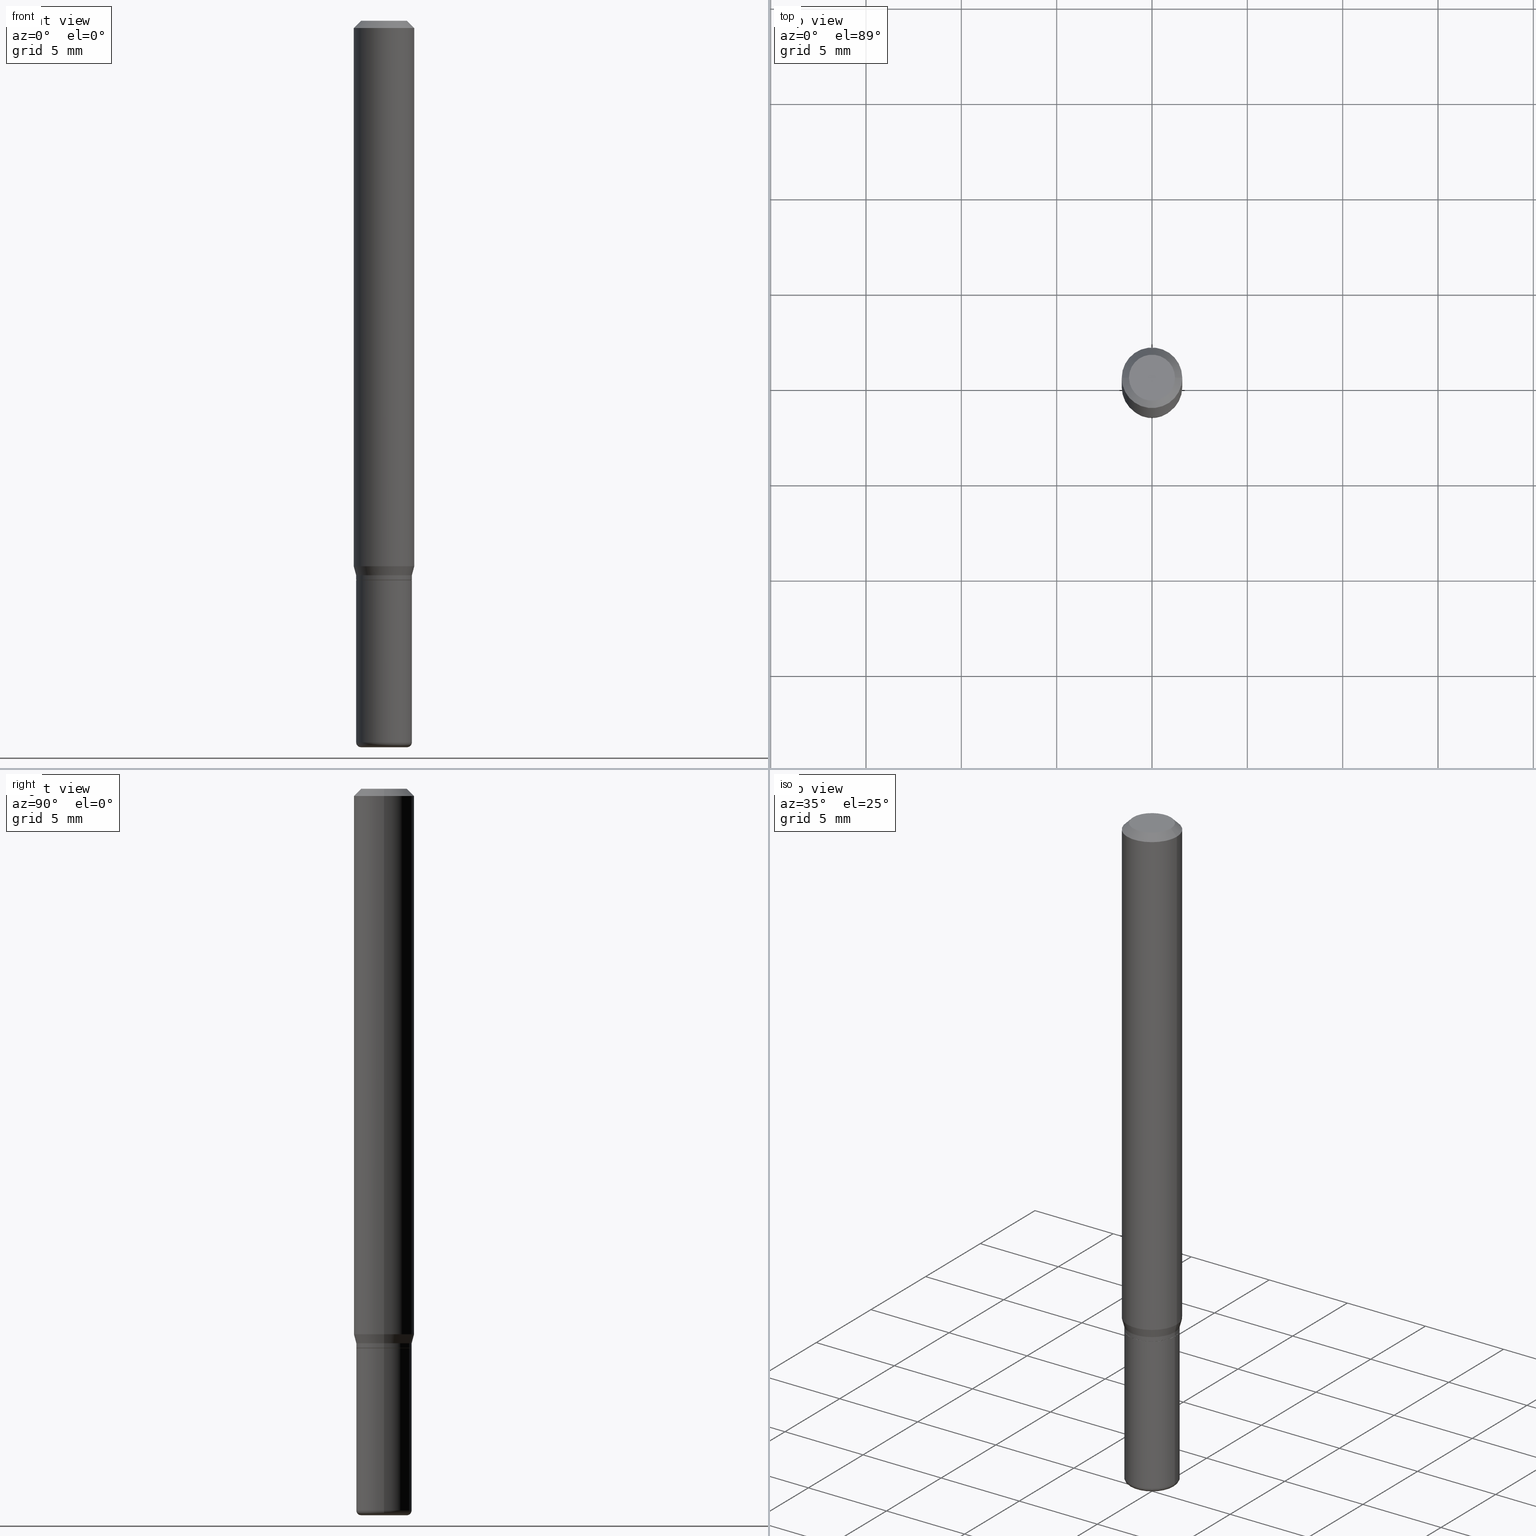
[diagram: canonical four-view strip — front | top / right | iso, engineering-drawing reading convention]
A machine part, canonical four-view strip (front | top / right | iso — engineering-drawing reading convention). The complete STEP part file that produces these views, byte-faithful:
ISO-10303-21;
HEADER;
FILE_DESCRIPTION (( 'STEP AP203' ),
    '1' );
FILE_NAME ('08765.STEP',
    '2024-02-29T20:55:03',
    ( '' ),
    ( '' ),
    'SwSTEP 2.0',
    'SolidWorks 2023',
    '' );
FILE_SCHEMA (( 'CONFIG_CONTROL_DESIGN' ));
ENDSEC;

DATA;
#1 = ADVANCED_FACE ( 'NONE', ( #54 ), #217, .T. ) ;
#2 = CARTESIAN_POINT ( 'NONE',  ( 2.824516471143833307E-29, -4.032660946363833383E-15, -1.155000000000000027 ) ) ;
#3 = CIRCLE ( 'NONE', #510, 0.05749999999999994699 ) ;
#4 = FACE_OUTER_BOUND ( 'NONE', #161, .T. ) ;
#5 = ORIENTED_EDGE ( 'NONE', *, *, #296, .T. ) ;
#6 = PERSON_AND_ORGANIZATION_ROLE ( 'classification_officer' ) ;
#7 = DIRECTION ( 'NONE',  ( 1.000000000000000000, -6.982962677686263555E-15, 0.000000000000000000 ) ) ;
#8 = VERTEX_POINT ( 'NONE', #378 ) ;
#9 = CARTESIAN_POINT ( 'NONE',  ( 0.05750000000000000250, -4.434181300330794192E-15, -1.155000000000000027 ) ) ;
#10 = ORIENTED_EDGE ( 'NONE', *, *, #460, .T. ) ;
#11 = ADVANCED_FACE ( 'NONE', ( #17 ), #418, .T. ) ;
#12 = PERSON_AND_ORGANIZATION ( #444, #34 ) ;
#13 = AXIS2_PLACEMENT_3D ( 'NONE', #152, #168, #206 ) ;
#14 = DIRECTION ( 'NONE',  ( -2.445468806185136597E-29, 3.491481338843145583E-15, 1.000000000000000000 ) ) ;
#15 = APPROVAL_STATUS ( 'not_yet_approved' ) ;
#16 = EDGE_CURVE ( 'NONE', #439, #494, #459, .T. ) ;
#17 = FACE_OUTER_BOUND ( 'NONE', #202, .T. ) ;
#18 = ORIENTED_EDGE ( 'NONE', *, *, #239, .F. ) ;
#19 = AXIS2_PLACEMENT_3D ( 'NONE', #203, #513, #363 ) ;
#20 = LOCAL_TIME ( 15, 55, 2.000000000000000000, #156 ) ;
#21 = EDGE_CURVE ( 'NONE', #113, #169, #197, .T. ) ;
#22 = DIRECTION ( 'NONE',  ( -2.445468806185136877E-29, 3.491481338843145188E-15, 1.000000000000000000 ) ) ;
#23 = DIRECTION ( 'NONE',  ( -2.445468806185136597E-29, 3.491481338843145583E-15, 1.000000000000000000 ) ) ;
#24 = DIRECTION ( 'NONE',  ( -0.7071067811865479058, 2.468850131082261005E-15, -0.7071067811865471286 ) ) ;
#25 = MECHANICAL_CONTEXT ( 'NONE', #313, 'mechanical' ) ;
#26 = CLOSED_SHELL ( 'NONE', ( #1, #349, #331, #101, #70, #143, #337, #172, #308, #262, #422, #159 ) ) ;
#27 = CIRCLE ( 'NONE', #32, 0.05749999999999994699 ) ;
#28 = DIRECTION ( 'NONE',  ( 1.000000000000000000, -6.982962677686266711E-15, 4.852736867747365086E-29 ) ) ;
#29 = APPLICATION_PROTOCOL_DEFINITION ( 'international standard', 'config_control_design', 1994, #313 ) ;
#30 = CYLINDRICAL_SURFACE ( 'NONE', #277, 0.05749999999999996780 ) ;
#31 = CARTESIAN_POINT ( 'NONE',  ( 2.824516471143833307E-29, -4.032660946363833383E-15, -1.155000000000000027 ) ) ;
#32 = AXIS2_PLACEMENT_3D ( 'NONE', #455, #211, #249 ) ;
#33 = FACE_OUTER_BOUND ( 'NONE', #250, .T. ) ;
#34 = ORGANIZATION ( 'UNSPECIFIED', 'UNSPECIFIED', '' ) ;
#35 = EDGE_LOOP ( 'NONE', ( #171, #409, #95, #86 ) ) ;
#36 = APPROVAL ( #15, 'UNSPECIFIED' ) ;
#37 = DIRECTION ( 'NONE',  ( -2.445468806185136877E-29, 3.491481338843145188E-15, 1.000000000000000000 ) ) ;
#38 = LINE ( 'NONE', #434, #214 ) ;
#39 = EDGE_LOOP ( 'NONE', ( #241, #176, #91, #297 ) ) ;
#40 = CC_DESIGN_PERSON_AND_ORGANIZATION_ASSIGNMENT ( #292, #6, ( #228 ) ) ;
#41 = CARTESIAN_POINT ( 'NONE',  ( -0.05699999999999997430, -3.627651586980576706E-15, -1.155000000000000027 ) ) ;
#42 = AXIS2_PLACEMENT_3D ( 'NONE', #278, #448, #81 ) ;
#43 = ORIENTED_EDGE ( 'NONE', *, *, #134, .T. ) ;
#44 = VECTOR ( 'NONE', #276, 39.37007874015748143 ) ;
#45 = DIRECTION ( 'NONE',  ( -0.2588190451025202954, 5.211531920934543942E-15, 0.9659258262890684232 ) ) ;
#46 = CALENDAR_DATE ( 2024, 29, 2 ) ;
#47 = EDGE_CURVE ( 'NONE', #494, #8, #350, .T. ) ;
#48 = CARTESIAN_POINT ( 'NONE',  ( 3.643748521215853910E-29, -5.202307194876288105E-15, -1.490000000000000213 ) ) ;
#49 = ORIENTED_EDGE ( 'NONE', *, *, #343, .T. ) ;
#50 = DATE_TIME_ROLE ( 'creation_date' ) ;
#51 = DIRECTION ( 'NONE',  ( 1.000000000000000000, -6.982962677686268288E-15, 0.000000000000000000 ) ) ;
#52 = ORIENTED_EDGE ( 'NONE', *, *, #357, .T. ) ;
#53 = AXIS2_PLACEMENT_3D ( 'NONE', #475, #441, #478 ) ;
#54 = FACE_OUTER_BOUND ( 'NONE', #327, .T. ) ;
#55 = ORIENTED_EDGE ( 'NONE', *, *, #377, .T. ) ;
#56 = ORIENTED_EDGE ( 'NONE', *, *, #436, .T. ) ;
#57 = AXIS2_PLACEMENT_3D ( 'NONE', #407, #408, #7 ) ;
#58 = PRODUCT_DEFINITION_FORMATION_WITH_SPECIFIED_SOURCE ( 'ANY', '', #493, .NOT_KNOWN. ) ;
#59 = CARTESIAN_POINT ( 'NONE',  ( 0.000000000000000000, 0.000000000000000000, 0.000000000000000000 ) ) ;
#60 = DIRECTION ( 'NONE',  ( 2.438088387897960049E-29, -3.491481338843145188E-15, -1.000000000000000000 ) ) ;
#61 = CARTESIAN_POINT ( 'NONE',  ( -6.680649051745406845E-45, 9.538196290434862081E-31, 2.731847993664263218E-16 ) ) ;
#62 = PRODUCT_RELATED_PRODUCT_CATEGORY ( 'detail', '', ( #493 ) ) ;
#63 = DIRECTION ( 'NONE',  ( 1.000000000000000000, -6.982962677686263555E-15, 0.000000000000000000 ) ) ;
#64 = EDGE_CURVE ( 'NONE', #319, #75, #403, .T. ) ;
#65 = CIRCLE ( 'NONE', #42, 0.06250000000000000000 ) ;
#66 = CARTESIAN_POINT ( 'NONE',  ( 0.05749999999999994699, -5.603827548843247337E-15, -1.490000000000000213 ) ) ;
#67 = LINE ( 'NONE', #346, #191 ) ;
#68 = EDGE_CURVE ( 'NONE', #169, #79, #463, .T. ) ;
#69 = CARTESIAN_POINT ( 'NONE',  ( 0.06250000000000000000, -4.888073874380378612E-16, -0.01499999999999970281 ) ) ;
#70 = ADVANCED_FACE ( 'NONE', ( #259 ), #146, .T. ) ;
#71 = CARTESIAN_POINT ( 'NONE',  ( 2.824516471143833307E-29, -4.032660946363833383E-15, -1.155000000000000027 ) ) ;
#72 = AXIS2_PLACEMENT_3D ( 'NONE', #213, #14, #293 ) ;
#73 = AXIS2_PLACEMENT_3D ( 'NONE', #131, #87, #367 ) ;
#74 = DIRECTION ( 'NONE',  ( -2.438088387897960049E-29, 3.491481338843145188E-15, 1.000000000000000000 ) ) ;
#75 = VERTEX_POINT ( 'NONE', #501 ) ;
#76 = CARTESIAN_POINT ( 'NONE',  ( 2.824516471143833307E-29, -4.032660946363833383E-15, -1.155000000000000027 ) ) ;
#77 = ORIENTED_EDGE ( 'NONE', *, *, #436, .F. ) ;
#78 = CARTESIAN_POINT ( 'NONE',  ( -0.04750000000000000749, 3.578768372314221353E-16, 2.731847993664239060E-16 ) ) ;
#79 = VERTEX_POINT ( 'NONE', #66 ) ;
#80 = AXIS2_PLACEMENT_3D ( 'NONE', #499, #23, #189 ) ;
#81 = DIRECTION ( 'NONE',  ( 1.000000000000000000, -6.982962677686266711E-15, 0.000000000000000000 ) ) ;
#82 = AXIS2_PLACEMENT_3D ( 'NONE', #85, #245, #51 ) ;
#83 = APPROVAL_STATUS ( 'not_yet_approved' ) ;
#84 = EDGE_CURVE ( 'NONE', #518, #287, #339, .T. ) ;
#85 = CARTESIAN_POINT ( 'NONE',  ( 2.824516471143833307E-29, -4.032660946363833383E-15, -1.155000000000000027 ) ) ;
#86 = ORIENTED_EDGE ( 'NONE', *, *, #512, .F. ) ;
#87 = DIRECTION ( 'NONE',  ( -2.445468806185136597E-29, 3.491481338843145583E-15, 1.000000000000000000 ) ) ;
#88 = VERTEX_POINT ( 'NONE', #69 ) ;
#89 = CALENDAR_DATE ( 2024, 29, 2 ) ;
#90 = EDGE_CURVE ( 'NONE', #75, #321, #303, .T. ) ;
#91 = ORIENTED_EDGE ( 'NONE', *, *, #417, .F. ) ;
#92 = VECTOR ( 'NONE', #231, 39.37007874015748143 ) ;
#93 = CONICAL_SURFACE ( 'NONE', #82, 0.05699999999999997430, 0.7853981633975507526 ) ;
#94 = CC_DESIGN_APPROVAL ( #36, ( #228 ) ) ;
#95 = ORIENTED_EDGE ( 'NONE', *, *, #377, .F. ) ;
#96 = ORIENTED_EDGE ( 'NONE', *, *, #84, .F. ) ;
#97 = ADVANCED_FACE ( 'NONE', ( #102 ), #263, .F. ) ;
#98 = DIRECTION ( 'NONE',  ( 7.105427357601001859E-15, 1.000000000000000000, -3.491481338843145583E-15 ) ) ;
#99 = CARTESIAN_POINT ( 'NONE',  ( -0.05750000000000000250, -4.208921997558003169E-15, -1.155000000000000027 ) ) ;
#100 = AXIS2_PLACEMENT_3D ( 'NONE', #76, #74, #235 ) ;
#101 = ADVANCED_FACE ( 'NONE', ( #271 ), #225, .T. ) ;
#102 = FACE_OUTER_BOUND ( 'NONE', #128, .T. ) ;
#103 = DIRECTION ( 'NONE',  ( 0.7071067811865479058, -7.319954787623257623E-15, -0.7071067811865471286 ) ) ;
#104 = EDGE_CURVE ( 'NONE', #79, #416, #106, .T. ) ;
#105 = DIRECTION ( 'NONE',  ( 1.000000000000000000, -6.982962677686273810E-15, 0.000000000000000000 ) ) ;
#106 = LINE ( 'NONE', #110, #481 ) ;
#107 = ADVANCED_FACE ( 'NONE', ( #306 ), #420, .T. ) ;
#108 = APPROVAL_ROLE ( '' ) ;
#109 = LOCAL_TIME ( 15, 55, 2.000000000000000000, #126 ) ;
#110 = CARTESIAN_POINT ( 'NONE',  ( 0.05749999999999997474, -4.015203539669602175E-16, 2.803801646082662240E-30 ) ) ;
#111 = DATE_AND_TIME ( #312, #207 ) ;
#112 = PLANE ( 'NONE',  #100 ) ;
#113 = VERTEX_POINT ( 'NONE', #391 ) ;
#114 = APPROVAL ( #310, 'UNSPECIFIED' ) ;
#115 = DIRECTION ( 'NONE',  ( -2.445468806185136597E-29, 3.491481338843145583E-15, 1.000000000000000000 ) ) ;
#116 = ORIENTED_EDGE ( 'NONE', *, *, #258, .T. ) ;
#117 = AXIS2_PLACEMENT_3D ( 'NONE', #326, #483, #279 ) ;
#118 = DIRECTION ( 'NONE',  ( -2.445468806185136597E-29, 3.491481338843145583E-15, 1.000000000000000000 ) ) ;
#119 = VERTEX_POINT ( 'NONE', #347 ) ;
#120 = CARTESIAN_POINT ( 'NONE',  ( -0.05749999999999997474, 4.085620730620574274E-16, -2.828387676896569661E-30 ) ) ;
#121 = EDGE_CURVE ( 'NONE', #416, #485, #252, .T. ) ;
#122 = ORIENTED_EDGE ( 'NONE', *, *, #134, .F. ) ;
#123 = CALENDAR_DATE ( 2024, 29, 2 ) ;
#124 = LINE ( 'NONE', #120, #295 ) ;
#125 = ORIENTED_EDGE ( 'NONE', *, *, #21, .F. ) ;
#126 = COORDINATED_UNIVERSAL_TIME_OFFSET ( 5, 0, .BEHIND. ) ;
#127 = FACE_OUTER_BOUND ( 'NONE', #35, .T. ) ;
#128 = EDGE_LOOP ( 'NONE', ( #491, #116 ) ) ;
#129 = DATE_AND_TIME ( #288, #109 ) ;
#130 = CC_DESIGN_PERSON_AND_ORGANIZATION_ASSIGNMENT ( #12, #180, ( #58 ) ) ;
#131 = CARTESIAN_POINT ( 'NONE',  ( 0.000000000000000000, 0.000000000000000000, 0.000000000000000000 ) ) ;
#132 = ORIENTED_EDGE ( 'NONE', *, *, #289, .T. ) ;
#133 = DATE_AND_TIME ( #46, #20 ) ;
#134 = EDGE_CURVE ( 'NONE', #287, #321, #187, .T. ) ;
#135 = ORIENTED_EDGE ( 'NONE', *, *, #90, .F. ) ;
#136 = COORDINATED_UNIVERSAL_TIME_OFFSET ( 5, 0, .BEHIND. ) ;
#137 = ORIENTED_EDGE ( 'NONE', *, *, #343, .F. ) ;
#138 = AXIS2_PLACEMENT_3D ( 'NONE', #386, #388, #105 ) ;
#139 = CONICAL_SURFACE ( 'NONE', #19, 0.06250000000000000000, 0.7853981633974488341 ) ;
#140 = VERTEX_POINT ( 'NONE', #506 ) ;
#141 = DIRECTION ( 'NONE',  ( 0.7071067811866199593, -2.468850131083015945E-15, 0.7071067811864750752 ) ) ;
#142 = DIRECTION ( 'NONE',  ( 1.000000000000000000, -6.982962677686266711E-15, 4.852736867747365086E-29 ) ) ;
#143 = ADVANCED_FACE ( 'NONE', ( #467 ), #348, .T. ) ;
#144 = DIRECTION ( 'NONE',  ( -1.000000000000000000, 7.105427357600964782E-15, 0.000000000000000000 ) ) ;
#145 = CARTESIAN_POINT ( 'NONE',  ( 0.05749999999999997474, -4.432435559661372688E-15, -1.154500000000000304 ) ) ;
#146 = CONICAL_SURFACE ( 'NONE', #80, 0.05749999999999994699, 0.2617993877991489637 ) ;
#147 = AXIS2_PLACEMENT_3D ( 'NONE', #48, #333, #486 ) ;
#148 = CARTESIAN_POINT ( 'NONE',  ( -0.06250000000000000000, 4.440892098500626162E-16, -3.074334431409316114E-30 ) ) ;
#149 = CARTESIAN_POINT ( 'NONE',  ( 0.06250000000000000000, -4.364351673553916694E-16, 3.047610484872459871E-30 ) ) ;
#150 = DIRECTION ( 'NONE',  ( -2.445468806185136877E-29, 3.491481338843145188E-15, 1.000000000000000000 ) ) ;
#151 = APPLICATION_PROTOCOL_DEFINITION ( 'international standard', 'config_control_design', 1994, #515 ) ;
#152 = CARTESIAN_POINT ( 'NONE',  ( 3.668203209277704895E-29, -5.237222008264718177E-15, -1.500000000000000222 ) ) ;
#153 = LENGTH_MEASURE_WITH_UNIT ( LENGTH_MEASURE( 0.02539999999999999897 ), #305 );
#154 = CONICAL_SURFACE ( 'NONE', #219, 0.05699999999999997430, 0.7853981633975507526 ) ;
#155 = DIRECTION ( 'NONE',  ( -2.445468806185136597E-29, 3.491481338843145583E-15, 1.000000000000000000 ) ) ;
#156 = COORDINATED_UNIVERSAL_TIME_OFFSET ( 5, 0, .BEHIND. ) ;
#157 = DIRECTION ( 'NONE',  ( -1.000000000000000000, 6.982962677686265922E-15, -4.876176775795935793E-29 ) ) ;
#158 = ORIENTED_EDGE ( 'NONE', *, *, #451, .F. ) ;
#159 = ADVANCED_FACE ( 'NONE', ( #469 ), #30, .T. ) ;
#160 = FACE_OUTER_BOUND ( 'NONE', #215, .T. ) ;
#161 = EDGE_LOOP ( 'NONE', ( #135, #280, #299, #137 ) ) ;
#162 = VECTOR ( 'NONE', #22, 39.37007874015748143 ) ;
#163 = EDGE_CURVE ( 'NONE', #113, #119, #243, .T. ) ;
#164 = AXIS2_PLACEMENT_3D ( 'NONE', #246, #374, #186 ) ;
#165 = DIRECTION ( 'NONE',  ( 1.000000000000000000, -6.982962677686268288E-15, 0.000000000000000000 ) ) ;
#166 = AXIS2_PLACEMENT_3D ( 'NONE', #220, #424, #195 ) ;
#167 = ORIENTED_EDGE ( 'NONE', *, *, #223, .F. ) ;
#168 = DIRECTION ( 'NONE',  ( -2.445468806185136597E-29, 3.491481338843145583E-15, 1.000000000000000000 ) ) ;
#169 = VERTEX_POINT ( 'NONE', #355 ) ;
#170 = LINE ( 'NONE', #489, #340 ) ;
#171 = ORIENTED_EDGE ( 'NONE', *, *, #451, .T. ) ;
#172 = ADVANCED_FACE ( 'NONE', ( #160 ), #183, .T. ) ;
#173 = AXIS2_PLACEMENT_3D ( 'NONE', #221, #98, #144 ) ;
#174 = CYLINDRICAL_SURFACE ( 'NONE', #73, 0.05749999999999997474 ) ;
#175 = CIRCLE ( 'NONE', #227, 0.04750000000000000749 ) ;
#176 = ORIENTED_EDGE ( 'NONE', *, *, #205, .T. ) ;
#177 = LOCAL_TIME ( 15, 55, 2.000000000000000000, #281 ) ;
#178 = SECURITY_CLASSIFICATION_LEVEL ( 'unclassified' ) ;
#179 = EDGE_LOOP ( 'NONE', ( #514, #375, #247, #291 ) ) ;
#180 = PERSON_AND_ORGANIZATION_ROLE ( 'design_supplier' ) ;
#181 = VECTOR ( 'NONE', #141, 39.37007874015748143 ) ;
#182 = DIRECTION ( 'NONE',  ( -2.445468806185136597E-29, 3.491481338843145583E-15, 1.000000000000000000 ) ) ;
#183 = CONICAL_SURFACE ( 'NONE', #53, 0.06250000000000000000, 0.7853981633974488341 ) ;
#184 = PRODUCT_DEFINITION_SHAPE ( 'NONE', 'NONE',  #212 ) ;
#185 = CARTESIAN_POINT ( 'NONE',  ( 0.000000000000000000, 0.000000000000000000, 0.000000000000000000 ) ) ;
#186 = DIRECTION ( 'NONE',  ( 1.000000000000000000, -6.982962677686259611E-15, 0.000000000000000000 ) ) ;
#187 = LINE ( 'NONE', #345, #380 ) ;
#188 = CARTESIAN_POINT ( 'NONE',  ( 0.05699999999999997430, -4.430689818991950396E-15, -1.155000000000000027 ) ) ;
#189 = DIRECTION ( 'NONE',  ( 1.000000000000000000, -6.982962677686272233E-15, 0.000000000000000000 ) ) ;
#190 = AXIS2_PLACEMENT_3D ( 'NONE', #429, #300, #63 ) ;
#191 = VECTOR ( 'NONE', #103, 39.37007874015748143 ) ;
#192 = DIRECTION ( 'NONE',  ( -1.000000000000000000, 6.982962677686265922E-15, -4.876176775795935793E-29 ) ) ;
#193 = DIRECTION ( 'NONE',  ( -2.445468806185136597E-29, 3.491481338843145583E-15, 1.000000000000000000 ) ) ;
#194 = DIRECTION ( 'NONE',  ( -2.445468806185136597E-29, 3.491481338843145583E-15, 1.000000000000000000 ) ) ;
#195 = DIRECTION ( 'NONE',  ( 1.000000000000000000, 0.000000000000000000, 0.000000000000000000 ) ) ;
#196 = DIRECTION ( 'NONE',  ( -2.438088387897960049E-29, 3.491481338843145188E-15, 1.000000000000000000 ) ) ;
#197 = CIRCLE ( 'NONE', #173, 0.009999999999999944697 ) ;
#198 = AXIS2_PLACEMENT_3D ( 'NONE', #2, #115, #437 ) ;
#199 = DIRECTION ( 'NONE',  ( 0.2588190451025202954, 1.565188264969630251E-15, 0.9659258262890684232 ) ) ;
#200 = EDGE_LOOP ( 'NONE', ( #55, #315, #341, #446 ) ) ;
#201 = FACE_OUTER_BOUND ( 'NONE', #253, .T. ) ;
#202 = EDGE_LOOP ( 'NONE', ( #125, #218, #383, #368 ) ) ;
#203 = CARTESIAN_POINT ( 'NONE',  ( 3.668203209277632395E-31, -5.237222008264614861E-17, -0.01499999999999970281 ) ) ;
#204 = ORIENTED_EDGE ( 'NONE', *, *, #68, .T. ) ;
#205 = EDGE_CURVE ( 'NONE', #456, #140, #354, .T. ) ;
#206 = DIRECTION ( 'NONE',  ( 1.000000000000000000, -6.982962677686260400E-15, 0.000000000000000000 ) ) ;
#207 = LOCAL_TIME ( 15, 55, 2.000000000000000000, #353 ) ;
#208 = EDGE_LOOP ( 'NONE', ( #18, #167 ) ) ;
#209 = DIRECTION ( 'NONE',  ( 1.000000000000000000, -6.982962677686259611E-15, 0.000000000000000000 ) ) ;
#210 = APPROVAL_ROLE ( '' ) ;
#211 = DIRECTION ( 'NONE',  ( -2.445468806185136597E-29, 3.491481338843145583E-15, 1.000000000000000000 ) ) ;
#212 = PRODUCT_DEFINITION ( 'UNKNOWN', '', #58, #283 ) ;
#213 = CARTESIAN_POINT ( 'NONE',  ( 0.000000000000000000, 0.000000000000000000, 0.000000000000000000 ) ) ;
#214 = VECTOR ( 'NONE', #199, 39.37007874015748143 ) ;
#215 = EDGE_LOOP ( 'NONE', ( #77, #284, #43, #49 ) ) ;
#216 = ORIENTED_EDGE ( 'NONE', *, *, #442, .F. ) ;
#217 = CYLINDRICAL_SURFACE ( 'NONE', #72, 0.05749999999999996780 ) ;
#218 = ORIENTED_EDGE ( 'NONE', *, *, #163, .T. ) ;
#219 = AXIS2_PLACEMENT_3D ( 'NONE', #31, #511, #329 ) ;
#220 = CARTESIAN_POINT ( 'NONE',  ( 0.000000000000000000, 0.000000000000000000, 0.000000000000000000 ) ) ;
#221 = CARTESIAN_POINT ( 'NONE',  ( -0.04750000000000000749, -4.864799395390240612E-15, -1.490000000000000213 ) ) ;
#222 = DIRECTION ( 'NONE',  ( 1.000000000000000000, -6.982962677686267499E-15, 4.876176775795936353E-29 ) ) ;
#223 = EDGE_CURVE ( 'NONE', #456, #439, #471, .T. ) ;
#224 = CARTESIAN_POINT ( 'NONE',  ( -0.05699999999999997430, -3.625002359806465505E-15, -1.155000000000000027 ) ) ;
#225 = CYLINDRICAL_SURFACE ( 'NONE', #242, 0.06250000000000000000 ) ;
#226 = AXIS2_PLACEMENT_3D ( 'NONE', #59, #389, #222 ) ;
#227 = AXIS2_PLACEMENT_3D ( 'NONE', #61, #193, #142 ) ;
#228 = SECURITY_CLASSIFICATION ( '', '', #178 ) ;
#229 = DIRECTION ( 'NONE',  ( 1.000000000000000000, -6.982962677686266711E-15, 4.876176775795935793E-29 ) ) ;
#230 = DIRECTION ( 'NONE',  ( -2.445468806185136597E-29, 3.491481338843145583E-15, 1.000000000000000000 ) ) ;
#231 = DIRECTION ( 'NONE',  ( -2.445468806185136877E-29, 3.491481338843145188E-15, 1.000000000000000000 ) ) ;
#232 = CARTESIAN_POINT ( 'NONE',  ( 2.824516471143833307E-29, -4.032660946363833383E-15, -1.155000000000000027 ) ) ;
#233 = ORIENTED_EDGE ( 'NONE', *, *, #385, .F. ) ;
#234 = AXIS2_PLACEMENT_3D ( 'NONE', #392, #268, #431 ) ;
#235 = DIRECTION ( 'NONE',  ( 1.000000000000000000, -6.982962677686265922E-15, 4.876176775795935793E-29 ) ) ;
#236 = EDGE_CURVE ( 'NONE', #169, #485, #124, .T. ) ;
#237 = FACE_OUTER_BOUND ( 'NONE', #238, .T. ) ;
#238 = EDGE_LOOP ( 'NONE', ( #10, #324 ) ) ;
#239 = EDGE_CURVE ( 'NONE', #439, #456, #322, .T. ) ;
#240 = DIRECTION ( 'NONE',  ( -2.445468806185136877E-29, 3.491481338843145188E-15, 1.000000000000000000 ) ) ;
#241 = ORIENTED_EDGE ( 'NONE', *, *, #239, .T. ) ;
#242 = AXIS2_PLACEMENT_3D ( 'NONE', #185, #342, #229 ) ;
#243 = CIRCLE ( 'NONE', #13, 0.04750000000000000749 ) ;
#244 = APPROVAL_PERSON_ORGANIZATION ( #376, #36, #325 ) ;
#245 = DIRECTION ( 'NONE',  ( -2.445468806185136597E-29, 3.491481338843145583E-15, 1.000000000000000000 ) ) ;
#246 = CARTESIAN_POINT ( 'NONE',  ( 2.823293736740741066E-29, -4.030915205694411879E-15, -1.154500000000000304 ) ) ;
#247 = ORIENTED_EDGE ( 'NONE', *, *, #47, .T. ) ;
#248 = EDGE_CURVE ( 'NONE', #88, #321, #450, .T. ) ;
#249 = DIRECTION ( 'NONE',  ( 1.000000000000000000, -6.982962677686272233E-15, 0.000000000000000000 ) ) ;
#250 = EDGE_LOOP ( 'NONE', ( #96, #56, #356, #122 ) ) ;
#251 = DATE_TIME_ROLE ( 'classification_date' ) ;
#252 = CIRCLE ( 'NONE', #138, 0.05750000000000000250 ) ;
#253 = EDGE_LOOP ( 'NONE', ( #158, #395 ) ) ;
#254 = APPROVAL_DATE_TIME ( #414, #36 ) ;
#255 = ORIENTED_EDGE ( 'NONE', *, *, #236, .F. ) ;
#256 = CC_DESIGN_DATE_AND_TIME_ASSIGNMENT ( #133, #50, ( #212 ) ) ;
#257 = ORIENTED_EDGE ( 'NONE', *, *, #464, .F. ) ;
#258 = EDGE_CURVE ( 'NONE', #485, #416, #270, .T. ) ;
#259 = FACE_OUTER_BOUND ( 'NONE', #400, .T. ) ;
#260 = AXIS2_PLACEMENT_3D ( 'NONE', #232, #155, #484 ) ;
#261 = CARTESIAN_POINT ( 'NONE',  ( 0.04750000000000000749, -5.533997922066385616E-15, -1.490000000000000213 ) ) ;
#262 = ADVANCED_FACE ( 'NONE', ( #314 ), #112, .F. ) ;
#263 = PLANE ( 'NONE',  #438 ) ;
#264 = PERSON_AND_ORGANIZATION_ROLE ( 'creator' ) ;
#265 = CARTESIAN_POINT ( 'NONE',  ( 2.800061783081981762E-29, -3.997746132975402522E-15, -1.145000000000000240 ) ) ;
#266 = CARTESIAN_POINT ( 'NONE',  ( 0.000000000000000000, 0.000000000000000000, 0.000000000000000000 ) ) ;
#267 = AXIS2_PLACEMENT_3D ( 'NONE', #379, #182, #498 ) ;
#268 = DIRECTION ( 'NONE',  ( -2.445468806185136597E-29, 3.491481338843145583E-15, 1.000000000000000000 ) ) ;
#269 = TOROIDAL_SURFACE ( 'NONE', #147, 0.04750000000000000749, 0.009999999999999944697 ) ;
#270 = CIRCLE ( 'NONE', #260, 0.05750000000000000250 ) ;
#271 = FACE_OUTER_BOUND ( 'NONE', #359, .T. ) ;
#272 = APPROVAL_DATE_TIME ( #111, #114 ) ;
#273 = CARTESIAN_POINT ( 'NONE',  ( 3.582686580359766038E-29, -5.359686688179453325E-15, -1.500000000000000222 ) ) ;
#274 = EDGE_LOOP ( 'NONE', ( #334, #413, #338, #415 ) ) ;
#275 = ADVANCED_FACE ( 'NONE', ( #201 ), #397, .F. ) ;
#276 = DIRECTION ( 'NONE',  ( -0.7071067811866199593, 7.493145998870616062E-15, 0.7071067811864750752 ) ) ;
#277 = AXIS2_PLACEMENT_3D ( 'NONE', #266, #508, #352 ) ;
#278 = CARTESIAN_POINT ( 'NONE',  ( 3.668203209277632395E-31, -5.237222008264614861E-17, -0.01499999999999970281 ) ) ;
#279 = DIRECTION ( 'NONE',  ( 1.000000000000000000, -6.982962677686266711E-15, 0.000000000000000000 ) ) ;
#280 = ORIENTED_EDGE ( 'NONE', *, *, #464, .T. ) ;
#281 = COORDINATED_UNIVERSAL_TIME_OFFSET ( 5, 0, .BEHIND. ) ;
#282 = DIRECTION ( 'NONE',  ( 1.000000000000000000, -6.982962677686266711E-15, 4.876176775795935793E-29 ) ) ;
#283 = DESIGN_CONTEXT ( 'detailed design', #515, 'design' ) ;
#284 = ORIENTED_EDGE ( 'NONE', *, *, #460, .F. ) ;
#285 = CIRCLE ( 'NONE', #503, 0.009999999999999944697 ) ;
#286 = CARTESIAN_POINT ( 'NONE',  ( -0.05749999999999994699, -3.538844527143738686E-15, -1.145000000000000240 ) ) ;
#287 = VERTEX_POINT ( 'NONE', #78 ) ;
#288 = CALENDAR_DATE ( 2024, 29, 2 ) ;
#289 = EDGE_CURVE ( 'NONE', #8, #319, #38, .T. ) ;
#290 = DIRECTION ( 'NONE',  ( -2.445468806185136597E-29, 3.491481338843145583E-15, 1.000000000000000000 ) ) ;
#291 = ORIENTED_EDGE ( 'NONE', *, *, #357, .F. ) ;
#292 = PERSON_AND_ORGANIZATION ( #444, #34 ) ;
#293 = DIRECTION ( 'NONE',  ( 1.000000000000000000, -6.982962677686266711E-15, 4.876176775795935793E-29 ) ) ;
#294 = SHAPE_DEFINITION_REPRESENTATION ( #184, #360 ) ;
#295 = VECTOR ( 'NONE', #37, 39.37007874015748143 ) ;
#296 = EDGE_CURVE ( 'NONE', #140, #411, #394, .T. ) ;
#297 = ORIENTED_EDGE ( 'NONE', *, *, #16, .F. ) ;
#298 = CC_DESIGN_SECURITY_CLASSIFICATION ( #228, ( #58 ) ) ;
#299 = ORIENTED_EDGE ( 'NONE', *, *, #442, .T. ) ;
#300 = DIRECTION ( 'NONE',  ( -2.445468806185136597E-29, 3.491481338843145583E-15, 1.000000000000000000 ) ) ;
#301 = CARTESIAN_POINT ( 'NONE',  ( 3.668203209277704895E-29, -5.237222008264718177E-15, -1.500000000000000222 ) ) ;
#302 = CC_DESIGN_PERSON_AND_ORGANIZATION_ASSIGNMENT ( #351, #433, ( #493 ) ) ;
#303 = LINE ( 'NONE', #148, #92 ) ;
#304 = CIRCLE ( 'NONE', #57, 0.05749999999999994699 ) ;
#305 =( LENGTH_UNIT ( ) NAMED_UNIT ( * ) SI_UNIT ( $, .METRE. ) );
#306 = FACE_OUTER_BOUND ( 'NONE', #476, .T. ) ;
#307 = LINE ( 'NONE', #149, #482 ) ;
#308 = ADVANCED_FACE ( 'NONE', ( #237 ), #361, .F. ) ;
#309 = DIRECTION ( 'NONE',  ( 1.000000000000000000, -6.982962677686272233E-15, 0.000000000000000000 ) ) ;
#310 = APPROVAL_STATUS ( 'not_yet_approved' ) ;
#311 = CARTESIAN_POINT ( 'NONE',  ( 2.754428713916942619E-29, -3.932594204224195830E-15, -1.126339745962155581 ) ) ;
#312 = CALENDAR_DATE ( 2024, 29, 2 ) ;
#313 = APPLICATION_CONTEXT ( 'configuration controlled 3d designs of mechanical parts and assemblies' ) ;
#314 = FACE_OUTER_BOUND ( 'NONE', #208, .T. ) ;
#315 = ORIENTED_EDGE ( 'NONE', *, *, #236, .T. ) ;
#316 = CC_DESIGN_PERSON_AND_ORGANIZATION_ASSIGNMENT ( #369, #492, ( #58 ) ) ;
#317 = CYLINDRICAL_SURFACE ( 'NONE', #373, 0.06250000000000000000 ) ;
#318 = UNCERTAINTY_MEASURE_WITH_UNIT (LENGTH_MEASURE( 1.000000000000000082E-05 ), #427, 'distance_accuracy_value', 'NONE');
#319 = VERTEX_POINT ( 'NONE', #323 ) ;
#320 = DIRECTION ( 'NONE',  ( 1.000000000000000000, -6.982962677686265922E-15, 4.876176775795935793E-29 ) ) ;
#321 = VERTEX_POINT ( 'NONE', #401 ) ;
#322 = CIRCLE ( 'NONE', #404, 0.05699999999999997430 ) ;
#323 = CARTESIAN_POINT ( 'NONE',  ( 0.06250000000000000000, -4.369029371579586711E-15, -1.126339745962155581 ) ) ;
#324 = ORIENTED_EDGE ( 'NONE', *, *, #84, .T. ) ;
#325 = APPROVAL_ROLE ( '' ) ;
#326 = CARTESIAN_POINT ( 'NONE',  ( 3.668203209277632395E-31, -5.237222008264614861E-17, -0.01499999999999970281 ) ) ;
#327 = EDGE_LOOP ( 'NONE', ( #435, #5, #461, #336 ) ) ;
#328 = DATE_AND_TIME ( #89, #177 ) ;
#329 = DIRECTION ( 'NONE',  ( 1.000000000000000000, -6.982962677686268288E-15, 0.000000000000000000 ) ) ;
#330 = ORIENTED_EDGE ( 'NONE', *, *, #248, .F. ) ;
#331 = ADVANCED_FACE ( 'NONE', ( #33 ), #139, .T. ) ;
#332 = VECTOR ( 'NONE', #240, 39.37007874015748143 ) ;
#333 = DIRECTION ( 'NONE',  ( -2.445468806185136597E-29, 3.491481338843145583E-15, 1.000000000000000000 ) ) ;
#334 = ORIENTED_EDGE ( 'NONE', *, *, #205, .F. ) ;
#335 = MANIFOLD_SOLID_BREP ( 'Body-Move/Copy2[1]', #428 ) ;
#336 = ORIENTED_EDGE ( 'NONE', *, *, #47, .F. ) ;
#337 = ADVANCED_FACE ( 'NONE', ( #4 ), #317, .T. ) ;
#338 = ORIENTED_EDGE ( 'NONE', *, *, #16, .T. ) ;
#339 = CIRCLE ( 'NONE', #372, 0.04750000000000000749 ) ;
#340 = VECTOR ( 'NONE', #45, 39.37007874015748143 ) ;
#341 = ORIENTED_EDGE ( 'NONE', *, *, #121, .F. ) ;
#342 = DIRECTION ( 'NONE',  ( -2.445468806185136597E-29, 3.491481338843145583E-15, 1.000000000000000000 ) ) ;
#343 = EDGE_CURVE ( 'NONE', #321, #88, #65, .T. ) ;
#344 = DIRECTION ( 'NONE',  ( 1.000000000000000000, -6.982962677686274599E-15, 0.000000000000000000 ) ) ;
#345 = CARTESIAN_POINT ( 'NONE',  ( -0.06250000000000000000, 3.840629472727455270E-16, -0.01499999999999970281 ) ) ;
#346 = CARTESIAN_POINT ( 'NONE',  ( 0.06250000000000000000, -4.811533449433669144E-16, -0.01499999999999970281 ) ) ;
#347 = CARTESIAN_POINT ( 'NONE',  ( 0.04750000000000000749, -5.568912735454815688E-15, -1.500000000000000222 ) ) ;
#348 = CONICAL_SURFACE ( 'NONE', #496, 0.05749999999999994699, 0.2617993877991489637 ) ;
#349 = ADVANCED_FACE ( 'NONE', ( #393 ), #154, .T. ) ;
#350 = LINE ( 'NONE', #432, #162 ) ;
#351 = PERSON_AND_ORGANIZATION ( #444, #34 ) ;
#352 = DIRECTION ( 'NONE',  ( 1.000000000000000000, -6.982962677686266711E-15, 4.876176775795935793E-29 ) ) ;
#353 = COORDINATED_UNIVERSAL_TIME_OFFSET ( 5, 0, .BEHIND. ) ;
#354 = LINE ( 'NONE', #41, #44 ) ;
#355 = CARTESIAN_POINT ( 'NONE',  ( -0.05749999999999994699, -4.208921997558003169E-15, -1.490000000000000213 ) ) ;
#356 = ORIENTED_EDGE ( 'NONE', *, *, #248, .T. ) ;
#357 = EDGE_CURVE ( 'NONE', #411, #8, #27, .T. ) ;
#358 = CARTESIAN_POINT ( 'NONE',  ( -0.05749999999999996780, 4.085620730620573781E-16, -2.828387676896568961E-30 ) ) ;
#359 = EDGE_LOOP ( 'NONE', ( #487, #490, #330, #216 ) ) ;
#360 = ADVANCED_BREP_SHAPE_REPRESENTATION ( '08765', ( #335, #516, #166 ), #473 ) ;
#361 = PLANE ( 'NONE',  #412 ) ;
#362 = CIRCLE ( 'NONE', #465, 0.05749999999999997474 ) ;
#363 = DIRECTION ( 'NONE',  ( -1.000000000000000000, 6.982962677686266711E-15, 0.000000000000000000 ) ) ;
#364 = ORIENTED_EDGE ( 'NONE', *, *, #289, .F. ) ;
#365 = FACE_OUTER_BOUND ( 'NONE', #200, .T. ) ;
#366 = ORIENTED_EDGE ( 'NONE', *, *, #64, .F. ) ;
#367 = DIRECTION ( 'NONE',  ( 1.000000000000000000, -6.982962677686267499E-15, 4.876176775795936353E-29 ) ) ;
#368 = ORIENTED_EDGE ( 'NONE', *, *, #68, .F. ) ;
#369 = PERSON_AND_ORGANIZATION ( #444, #34 ) ;
#370 = ADVANCED_FACE ( 'NONE', ( #365 ), #174, .T. ) ;
#371 = DIMENSIONAL_EXPONENTS ( 1.000000000000000000, 0.000000000000000000, 0.000000000000000000, 0.000000000000000000, 0.000000000000000000, 0.000000000000000000, 0.000000000000000000 ) ;
#372 = AXIS2_PLACEMENT_3D ( 'NONE', #462, #472, #28 ) ;
#373 = AXIS2_PLACEMENT_3D ( 'NONE', #480, #118, #282 ) ;
#374 = DIRECTION ( 'NONE',  ( -2.445468806185136597E-29, 3.491481338843145583E-15, 1.000000000000000000 ) ) ;
#375 = ORIENTED_EDGE ( 'NONE', *, *, #426, .T. ) ;
#376 = PERSON_AND_ORGANIZATION ( #444, #34 ) ;
#377 = EDGE_CURVE ( 'NONE', #79, #169, #304, .T. ) ;
#378 = CARTESIAN_POINT ( 'NONE',  ( 0.05749999999999994699, -4.399266486942362543E-15, -1.145000000000000240 ) ) ;
#379 = CARTESIAN_POINT ( 'NONE',  ( 3.643748521215853910E-29, -5.202307194876288105E-15, -1.490000000000000213 ) ) ;
#380 = VECTOR ( 'NONE', #24, 39.37007874015748143 ) ;
#381 = AXIS2_PLACEMENT_3D ( 'NONE', #301, #502, #509 ) ;
#382 = CC_DESIGN_APPROVAL ( #114, ( #212 ) ) ;
#383 = ORIENTED_EDGE ( 'NONE', *, *, #512, .T. ) ;
#384 = PERSON_AND_ORGANIZATION ( #444, #34 ) ;
#385 = EDGE_CURVE ( 'NONE', #411, #75, #170, .T. ) ;
#386 = CARTESIAN_POINT ( 'NONE',  ( 2.824516471143833307E-29, -4.032660946363833383E-15, -1.155000000000000027 ) ) ;
#387 =( NAMED_UNIT ( * ) SI_UNIT ( $, .STERADIAN. ) SOLID_ANGLE_UNIT ( ) );
#388 = DIRECTION ( 'NONE',  ( -2.445468806185136597E-29, 3.491481338843145583E-15, 1.000000000000000000 ) ) ;
#389 = DIRECTION ( 'NONE',  ( -2.445468806185136597E-29, 3.491481338843145583E-15, 1.000000000000000000 ) ) ;
#390 = CC_DESIGN_APPROVAL ( #500, ( #58 ) ) ;
#391 = CARTESIAN_POINT ( 'NONE',  ( -0.04750000000000000749, -4.846729665296451395E-15, -1.500000000000000222 ) ) ;
#392 = CARTESIAN_POINT ( 'NONE',  ( 2.754428713916942619E-29, -3.932594204224195830E-15, -1.126339745962155581 ) ) ;
#393 = FACE_OUTER_BOUND ( 'NONE', #39, .T. ) ;
#394 = LINE ( 'NONE', #358, #332 ) ;
#395 = ORIENTED_EDGE ( 'NONE', *, *, #163, .F. ) ;
#396 = CIRCLE ( 'NONE', #381, 0.04750000000000000749 ) ;
#397 = PLANE ( 'NONE',  #440 ) ;
#398 = CC_DESIGN_DATE_AND_TIME_ASSIGNMENT ( #328, #251, ( #228 ) ) ;
#399 = DIRECTION ( 'NONE',  ( 2.438088387897960049E-29, -3.491481338843145188E-15, -1.000000000000000000 ) ) ;
#400 = EDGE_LOOP ( 'NONE', ( #402, #443, #366, #364 ) ) ;
#401 = CARTESIAN_POINT ( 'NONE',  ( -0.06250000000000000000, -1.548394002303358444E-15, -0.01499999999999970281 ) ) ;
#402 = ORIENTED_EDGE ( 'NONE', *, *, #477, .T. ) ;
#403 = CIRCLE ( 'NONE', #495, 0.06250000000000000000 ) ;
#404 = AXIS2_PLACEMENT_3D ( 'NONE', #71, #445, #165 ) ;
#405 = LOCAL_TIME ( 15, 55, 2.000000000000000000, #136 ) ;
#406 = ADVANCED_FACE ( 'NONE', ( #127 ), #269, .T. ) ;
#407 = CARTESIAN_POINT ( 'NONE',  ( 3.643748521215853910E-29, -5.202307194876288105E-15, -1.490000000000000213 ) ) ;
#408 = DIRECTION ( 'NONE',  ( -2.445468806185136597E-29, 3.491481338843145583E-15, 1.000000000000000000 ) ) ;
#409 = ORIENTED_EDGE ( 'NONE', *, *, #21, .T. ) ;
#410 = CARTESIAN_POINT ( 'NONE',  ( 2.823293736740741066E-29, -4.030915205694411879E-15, -1.154500000000000304 ) ) ;
#411 = VERTEX_POINT ( 'NONE', #286 ) ;
#412 = AXIS2_PLACEMENT_3D ( 'NONE', #517, #399, #157 ) ;
#413 = ORIENTED_EDGE ( 'NONE', *, *, #223, .T. ) ;
#414 = DATE_AND_TIME ( #123, #405 ) ;
#415 = ORIENTED_EDGE ( 'NONE', *, *, #426, .F. ) ;
#416 = VERTEX_POINT ( 'NONE', #9 ) ;
#417 = EDGE_CURVE ( 'NONE', #494, #140, #362, .T. ) ;
#418 = TOROIDAL_SURFACE ( 'NONE', #267, 0.04750000000000000749, 0.009999999999999944697 ) ;
#419 = CIRCLE ( 'NONE', #164, 0.05749999999999997474 ) ;
#420 = CYLINDRICAL_SURFACE ( 'NONE', #226, 0.05749999999999997474 ) ;
#421 = CARTESIAN_POINT ( 'NONE',  ( 2.800061783081981762E-29, -3.997746132975402522E-15, -1.145000000000000240 ) ) ;
#422 = ADVANCED_FACE ( 'NONE', ( #452 ), #93, .T. ) ;
#423 = CARTESIAN_POINT ( 'NONE',  ( 4.015203539669885672E-16, 0.05749999999999597100, -1.155000000000000249 ) ) ;
#424 = DIRECTION ( 'NONE',  ( 0.000000000000000000, 0.000000000000000000, 1.000000000000000000 ) ) ;
#425 = DIRECTION ( 'NONE',  ( -2.445468806185136597E-29, 3.491481338843145583E-15, 1.000000000000000000 ) ) ;
#426 = EDGE_CURVE ( 'NONE', #140, #494, #419, .T. ) ;
#427 =( CONVERSION_BASED_UNIT ( 'INCH', #153 ) LENGTH_UNIT ( ) NAMED_UNIT ( #371 ) );
#428 = CLOSED_SHELL ( 'NONE', ( #406, #370, #97, #107, #11, #275 ) ) ;
#429 = CARTESIAN_POINT ( 'NONE',  ( 3.643748521215853910E-29, -5.202307194876288105E-15, -1.490000000000000213 ) ) ;
#430 = CIRCLE ( 'NONE', #234, 0.06250000000000000000 ) ;
#431 = DIRECTION ( 'NONE',  ( 1.000000000000000000, -6.982962677686270655E-15, 0.000000000000000000 ) ) ;
#432 = CARTESIAN_POINT ( 'NONE',  ( 0.05749999999999996780, -4.015203539669601189E-16, 2.803801646082661539E-30 ) ) ;
#433 = PERSON_AND_ORGANIZATION_ROLE ( 'design_owner' ) ;
#434 = CARTESIAN_POINT ( 'NONE',  ( 0.05749999999999994699, -4.399266486942362543E-15, -1.145000000000000240 ) ) ;
#435 = ORIENTED_EDGE ( 'NONE', *, *, #417, .T. ) ;
#436 = EDGE_CURVE ( 'NONE', #518, #88, #67, .T. ) ;
#437 = DIRECTION ( 'NONE',  ( 1.000000000000000000, -6.982962677686268288E-15, 0.000000000000000000 ) ) ;
#438 = AXIS2_PLACEMENT_3D ( 'NONE', #423, #60, #192 ) ;
#439 = VERTEX_POINT ( 'NONE', #188 ) ;
#440 = AXIS2_PLACEMENT_3D ( 'NONE', #273, #196, #320 ) ;
#441 = DIRECTION ( 'NONE',  ( 2.445468806185136597E-29, -3.491481338843145583E-15, -1.000000000000000000 ) ) ;
#442 = EDGE_CURVE ( 'NONE', #319, #88, #307, .T. ) ;
#443 = ORIENTED_EDGE ( 'NONE', *, *, #385, .T. ) ;
#444 = PERSON ( 'UNSPECIFIED', 'UNSPECIFIED', 'UNSPECIFIED', ('UNSPECIFIED'), ('UNSPECIFIED'), ('UNSPECIFIED') ) ;
#445 = DIRECTION ( 'NONE',  ( -2.445468806185136597E-29, 3.491481338843145583E-15, 1.000000000000000000 ) ) ;
#446 = ORIENTED_EDGE ( 'NONE', *, *, #104, .F. ) ;
#447 = CC_DESIGN_PERSON_AND_ORGANIZATION_ASSIGNMENT ( #449, #264, ( #212 ) ) ;
#448 = DIRECTION ( 'NONE',  ( -2.445468806185136597E-29, 3.491481338843145583E-15, 1.000000000000000000 ) ) ;
#449 = PERSON_AND_ORGANIZATION ( #444, #34 ) ;
#450 = CIRCLE ( 'NONE', #117, 0.06250000000000000000 ) ;
#451 = EDGE_CURVE ( 'NONE', #119, #113, #396, .T. ) ;
#452 = FACE_OUTER_BOUND ( 'NONE', #274, .T. ) ;
#453 = ORIENTED_EDGE ( 'NONE', *, *, #104, .T. ) ;
#454 = APPROVAL_DATE_TIME ( #129, #500 ) ;
#455 = CARTESIAN_POINT ( 'NONE',  ( 2.800061783081981762E-29, -3.997746132975402522E-15, -1.145000000000000240 ) ) ;
#456 = VERTEX_POINT ( 'NONE', #224 ) ;
#457 = EDGE_LOOP ( 'NONE', ( #233, #52, #132, #257 ) ) ;
#458 = APPROVAL_PERSON_ORGANIZATION ( #384, #114, #108 ) ;
#459 = LINE ( 'NONE', #466, #181 ) ;
#460 = EDGE_CURVE ( 'NONE', #287, #518, #175, .T. ) ;
#461 = ORIENTED_EDGE ( 'NONE', *, *, #477, .F. ) ;
#462 = CARTESIAN_POINT ( 'NONE',  ( -6.680649051745406845E-45, 9.538196290434862081E-31, 2.731847993664263218E-16 ) ) ;
#463 = CIRCLE ( 'NONE', #190, 0.05749999999999994699 ) ;
#464 = EDGE_CURVE ( 'NONE', #75, #319, #430, .T. ) ;
#465 = AXIS2_PLACEMENT_3D ( 'NONE', #410, #290, #209 ) ;
#466 = CARTESIAN_POINT ( 'NONE',  ( 0.05699999999999997430, -4.430689818991950396E-15, -1.155000000000000027 ) ) ;
#467 = FACE_OUTER_BOUND ( 'NONE', #457, .T. ) ;
#468 = DIRECTION ( 'NONE',  ( -6.982962677686266711E-15, -1.000000000000000000, 3.491481338843145583E-15 ) ) ;
#469 = FACE_OUTER_BOUND ( 'NONE', #179, .T. ) ;
#470 = CARTESIAN_POINT ( 'NONE',  ( 0.04750000000000000749, -4.035134999187568762E-16, 2.731847993664288856E-16 ) ) ;
#471 = CIRCLE ( 'NONE', #198, 0.05699999999999997430 ) ;
#472 = DIRECTION ( 'NONE',  ( -2.445468806185136597E-29, 3.491481338843145583E-15, 1.000000000000000000 ) ) ;
#473 =( GEOMETRIC_REPRESENTATION_CONTEXT ( 3 ) GLOBAL_UNCERTAINTY_ASSIGNED_CONTEXT ( ( #318 ) ) GLOBAL_UNIT_ASSIGNED_CONTEXT ( ( #427, #474, #387 ) ) REPRESENTATION_CONTEXT ( 'NONE', 'WORKASPACE' ) );
#474 =( NAMED_UNIT ( * ) PLANE_ANGLE_UNIT ( ) SI_UNIT ( $, .RADIAN. ) );
#475 = CARTESIAN_POINT ( 'NONE',  ( 3.668203209277632395E-31, -5.237222008264614861E-17, -0.01499999999999970281 ) ) ;
#476 = EDGE_LOOP ( 'NONE', ( #255, #204, #453, #479 ) ) ;
#477 = EDGE_CURVE ( 'NONE', #8, #411, #3, .T. ) ;
#478 = DIRECTION ( 'NONE',  ( -1.000000000000000000, 6.982962677686266711E-15, 0.000000000000000000 ) ) ;
#479 = ORIENTED_EDGE ( 'NONE', *, *, #258, .F. ) ;
#480 = CARTESIAN_POINT ( 'NONE',  ( 0.000000000000000000, 0.000000000000000000, 0.000000000000000000 ) ) ;
#481 = VECTOR ( 'NONE', #150, 39.37007874015748143 ) ;
#482 = VECTOR ( 'NONE', #505, 39.37007874015748143 ) ;
#483 = DIRECTION ( 'NONE',  ( -2.445468806185136597E-29, 3.491481338843145583E-15, 1.000000000000000000 ) ) ;
#484 = DIRECTION ( 'NONE',  ( 1.000000000000000000, -6.982962677686273810E-15, 0.000000000000000000 ) ) ;
#485 = VERTEX_POINT ( 'NONE', #99 ) ;
#486 = DIRECTION ( 'NONE',  ( 1.000000000000000000, -6.982962677686262766E-15, 4.883557194083111780E-29 ) ) ;
#487 = ORIENTED_EDGE ( 'NONE', *, *, #64, .T. ) ;
#488 = PERSON_AND_ORGANIZATION ( #444, #34 ) ;
#489 = CARTESIAN_POINT ( 'NONE',  ( -0.05749999999999994699, -3.589184059913344947E-15, -1.145000000000000240 ) ) ;
#490 = ORIENTED_EDGE ( 'NONE', *, *, #90, .T. ) ;
#491 = ORIENTED_EDGE ( 'NONE', *, *, #121, .T. ) ;
#492 = PERSON_AND_ORGANIZATION_ROLE ( 'creator' ) ;
#493 = PRODUCT ( '08765', '08765', '', ( #25 ) ) ;
#494 = VERTEX_POINT ( 'NONE', #145 ) ;
#495 = AXIS2_PLACEMENT_3D ( 'NONE', #311, #194, #504 ) ;
#496 = AXIS2_PLACEMENT_3D ( 'NONE', #265, #425, #309 ) ;
#497 = APPROVAL_PERSON_ORGANIZATION ( #488, #500, #210 ) ;
#498 = DIRECTION ( 'NONE',  ( 1.000000000000000000, -6.982962677686262766E-15, 4.883557194083111780E-29 ) ) ;
#499 = CARTESIAN_POINT ( 'NONE',  ( 2.800061783081981762E-29, -3.997746132975402522E-15, -1.145000000000000240 ) ) ;
#500 = APPROVAL ( #83, 'UNSPECIFIED' ) ;
#501 = CARTESIAN_POINT ( 'NONE',  ( -0.06250000000000000000, -3.488504994374132819E-15, -1.126339745962155581 ) ) ;
#502 = DIRECTION ( 'NONE',  ( -2.445468806185136597E-29, 3.491481338843145583E-15, 1.000000000000000000 ) ) ;
#503 = AXIS2_PLACEMENT_3D ( 'NONE', #261, #468, #344 ) ;
#504 = DIRECTION ( 'NONE',  ( 1.000000000000000000, -6.982962677686270655E-15, 0.000000000000000000 ) ) ;
#505 = DIRECTION ( 'NONE',  ( -2.445468806185136877E-29, 3.491481338843145188E-15, 1.000000000000000000 ) ) ;
#506 = CARTESIAN_POINT ( 'NONE',  ( -0.05749999999999997474, -3.622353132632355093E-15, -1.154500000000000304 ) ) ;
#507 = DIRECTION ( 'NONE',  ( 1.000000000000000000, -6.982962677686272233E-15, 0.000000000000000000 ) ) ;
#508 = DIRECTION ( 'NONE',  ( -2.445468806185136597E-29, 3.491481338843145583E-15, 1.000000000000000000 ) ) ;
#509 = DIRECTION ( 'NONE',  ( 1.000000000000000000, -6.982962677686260400E-15, 0.000000000000000000 ) ) ;
#510 = AXIS2_PLACEMENT_3D ( 'NONE', #421, #230, #507 ) ;
#511 = DIRECTION ( 'NONE',  ( -2.445468806185136597E-29, 3.491481338843145583E-15, 1.000000000000000000 ) ) ;
#512 = EDGE_CURVE ( 'NONE', #119, #79, #285, .T. ) ;
#513 = DIRECTION ( 'NONE',  ( 2.445468806185136597E-29, -3.491481338843145583E-15, -1.000000000000000000 ) ) ;
#514 = ORIENTED_EDGE ( 'NONE', *, *, #296, .F. ) ;
#515 = APPLICATION_CONTEXT ( 'configuration controlled 3d designs of mechanical parts and assemblies' ) ;
#516 = MANIFOLD_SOLID_BREP ( 'Body-Move/Copy2[2]', #26 ) ;
#517 = CARTESIAN_POINT ( 'NONE',  ( 3.316907271900976589E-16, 0.04750000000000000749, -2.925296391183627249E-17 ) ) ;
#518 = VERTEX_POINT ( 'NONE', #470 ) ;
ENDSEC;
END-ISO-10303-21;
